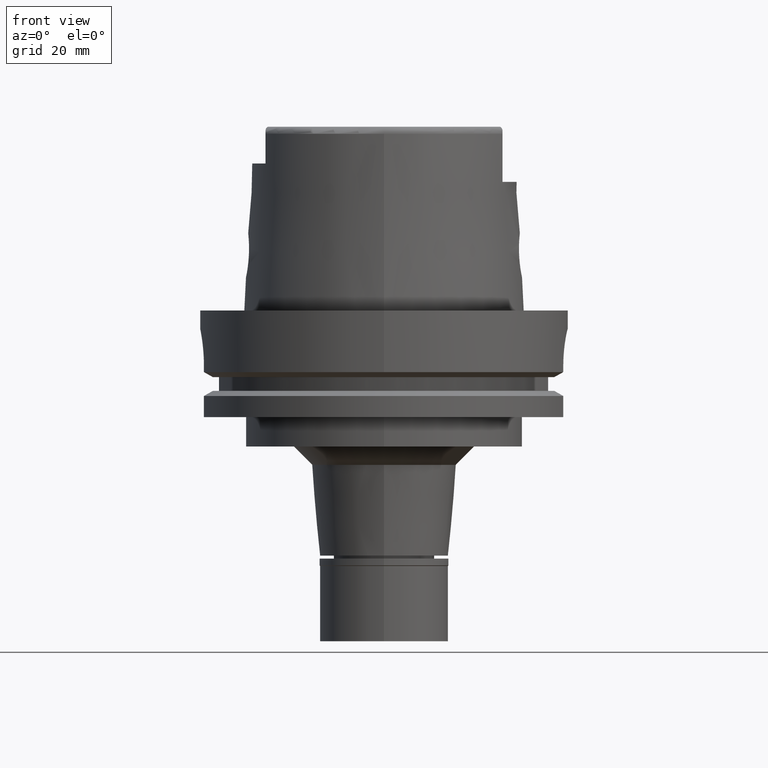
[diagram: clean part render]
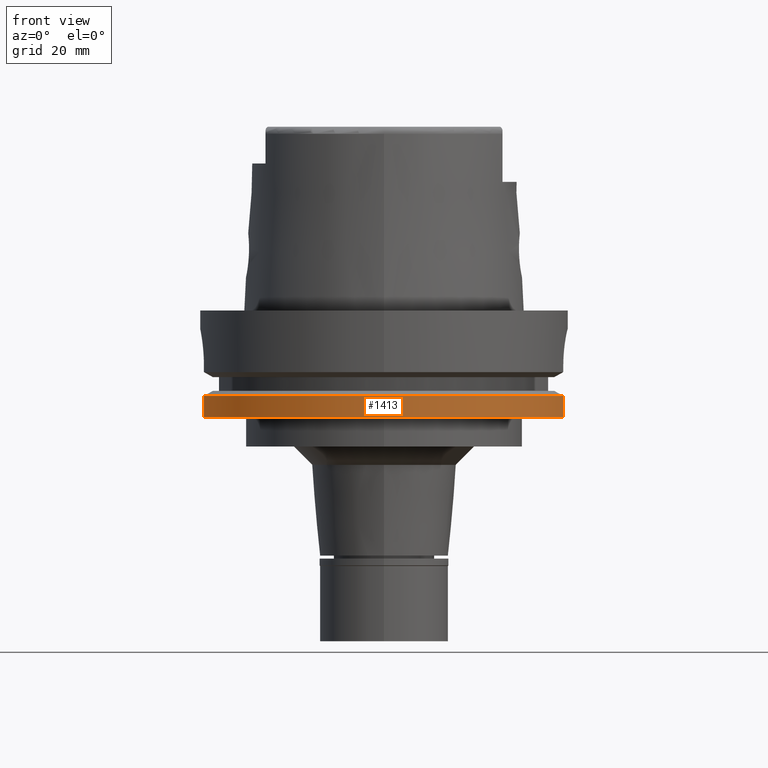
[diagram: same view with one face highlighted and labeled with its STEP entity id]
A machine part, front view. The second image highlights one B-rep face of the part: STEP entity #1413.
In plain terms, the highlighted cylindrical surface (partial cylindrical patch) has radius 50 mm, axis along (0, 0, 1).
Its self-contained STEP definition (entity closure, byte-faithful):
#249 = CARTESIAN_POINT ( 'NONE',  ( 48.77499359303000404, -11.00000000000000000, -23.24759526419000011 ) ) ;
#287 = EDGE_CURVE ( 'NONE', #2434, #4261, #5273, .T. ) ;
#640 = CARTESIAN_POINT ( 'NONE',  ( 0.0000000000000000000, 0.0000000000000000000, -23.24759526419000011 ) ) ;
#940 = LINE ( 'NONE', #2507, #1497 ) ;
#1262 = DIRECTION ( 'NONE',  ( 8.028864439405999945E-14, -2.223377844757999882E-14, -1.000000000000000000 ) ) ;
#1316 = ORIENTED_EDGE ( 'NONE', *, *, #1612, .F. ) ;
#1383 = CARTESIAN_POINT ( 'NONE',  ( -48.98979485565999425, -10.00000000000000000, -29.00000000000000000 ) ) ;
#1413 = ADVANCED_FACE ( 'NONE', ( #3008 ), #2122, .T. ) ;
#1435 = CARTESIAN_POINT ( 'NONE',  ( -48.98979485565999425, -10.00000000000000000, -23.24759526419000011 ) ) ;
#1497 = VECTOR ( 'NONE', #1262, 1000.000000000000000 ) ;
#1522 = CARTESIAN_POINT ( 'NONE',  ( 0.0000000000000000000, 0.0000000000000000000, -29.00000000000000000 ) ) ;
#1571 = DIRECTION ( 'NONE',  ( 0.0000000000000000000, 0.0000000000000000000, -1.000000000000000000 ) ) ;
#1612 = EDGE_CURVE ( 'NONE', #2677, #2552, #940, .T. ) ;
#1813 = CIRCLE ( 'NONE', #2530, 50.00000000000000711 ) ;
#2058 = ORIENTED_EDGE ( 'NONE', *, *, #2733, .T. ) ;
#2066 = DIRECTION ( 'NONE',  ( 0.0000000000000000000, 1.000000000000000000, 0.0000000000000000000 ) ) ;
#2122 = CYLINDRICAL_SURFACE ( 'NONE', #3665, 50.00000000000000000 ) ;
#2177 = DIRECTION ( 'NONE',  ( 0.0000000000000000000, 0.0000000000000000000, 1.000000000000000000 ) ) ;
#2434 = VERTEX_POINT ( 'NONE', #1383 ) ;
#2507 = CARTESIAN_POINT ( 'NONE',  ( 48.77499359303000404, -11.00000000000000000, -23.24759526419000011 ) ) ;
#2530 = AXIS2_PLACEMENT_3D ( 'NONE', #640, #1571, #4187 ) ;
#2552 = VERTEX_POINT ( 'NONE', #3647 ) ;
#2677 = VERTEX_POINT ( 'NONE', #249 ) ;
#2733 = EDGE_CURVE ( 'NONE', #2434, #2552, #5438, .T. ) ;
#3008 = FACE_OUTER_BOUND ( 'NONE', #4996, .T. ) ;
#3044 = ORIENTED_EDGE ( 'NONE', *, *, #287, .F. ) ;
#3556 = CARTESIAN_POINT ( 'NONE',  ( -48.98979485565999425, -10.00000000000000000, -29.00000000000000000 ) ) ;
#3647 = CARTESIAN_POINT ( 'NONE',  ( 48.77499359303000404, -11.00000000000000000, -29.00000000000000000 ) ) ;
#3665 = AXIS2_PLACEMENT_3D ( 'NONE', #5143, #2177, #2066 ) ;
#4187 = DIRECTION ( 'NONE',  ( 0.9754998718605770724, -0.2199999999999950051, 0.0000000000000000000 ) ) ;
#4261 = VERTEX_POINT ( 'NONE', #1435 ) ;
#4298 = VECTOR ( 'NONE', #4886, 1000.000000000000000 ) ;
#4484 = EDGE_CURVE ( 'NONE', #2677, #4261, #1813, .T. ) ;
#4568 = DIRECTION ( 'NONE',  ( 0.0000000000000000000, -1.000000000000000000, 0.0000000000000000000 ) ) ;
#4790 = ORIENTED_EDGE ( 'NONE', *, *, #4484, .T. ) ;
#4886 = DIRECTION ( 'NONE',  ( 9.140553361784999886E-14, 0.0000000000000000000, 1.000000000000000000 ) ) ;
#4996 = EDGE_LOOP ( 'NONE', ( #3044, #2058, #1316, #4790 ) ) ;
#5004 = DIRECTION ( 'NONE',  ( 0.0000000000000000000, 0.0000000000000000000, 1.000000000000000000 ) ) ;
#5143 = CARTESIAN_POINT ( 'NONE',  ( 0.0000000000000000000, 0.0000000000000000000, -89.96500000000000341 ) ) ;
#5273 = LINE ( 'NONE', #3556, #4298 ) ;
#5346 = AXIS2_PLACEMENT_3D ( 'NONE', #1522, #5004, #4568 ) ;
#5438 = CIRCLE ( 'NONE', #5346, 50.00000000000000000 ) ;